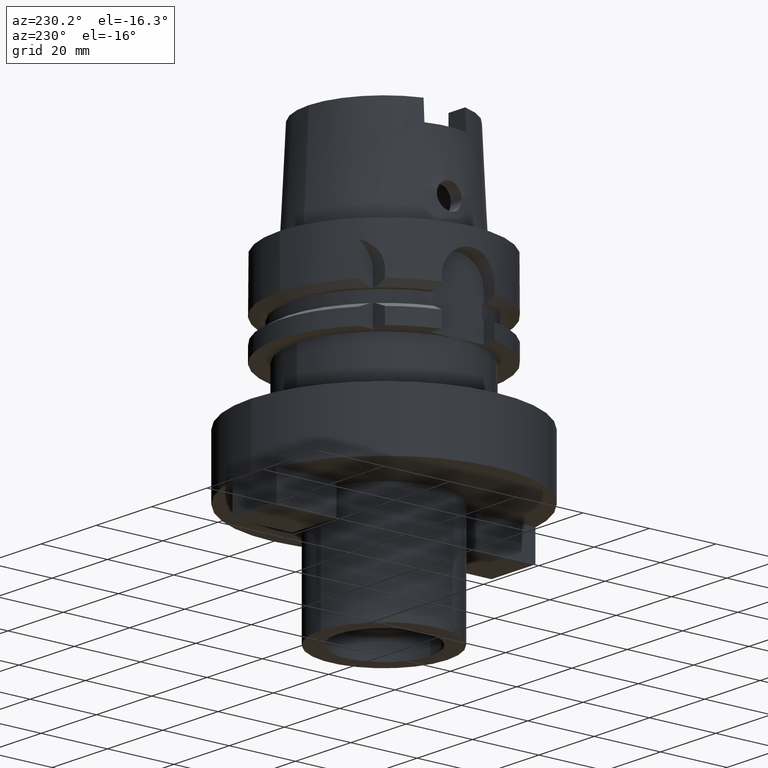
[diagram: clean part render]
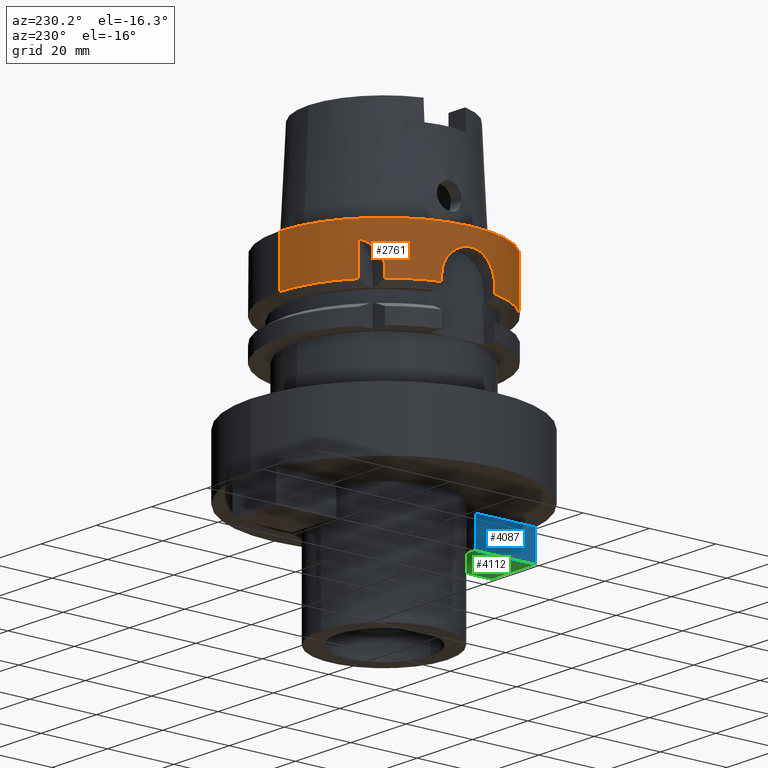
[diagram: same view with three faces highlighted in distinct colors, each labeled with its STEP entity id]
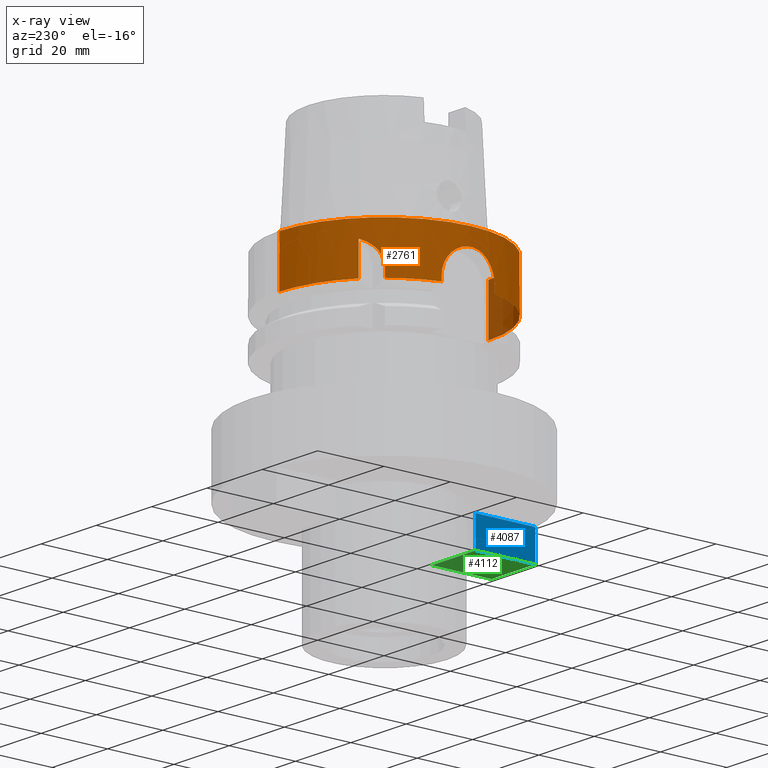
[diagram: x-ray of the same camera — body ghosted, the three highlighted faces saturated]
A machine part, auxiliary view with three faces highlighted in distinct colors.
The next image is the same camera in x-ray (body ghosted, the three faces saturated) — at least one of them is partly hidden behind the body in this view.
Their STEP definitions:

[orange] entity #2761 — the highlighted cylindrical surface (partial cylindrical patch) has radius 31.5 mm, axis along (0, 0, 1).
#342=CARTESIAN_POINT('',(0.E0,0.E0,1.705302565824E-13));
#343=DIRECTION('',(0.E0,0.E0,-1.E0));
#344=DIRECTION('',(0.E0,-1.E0,0.E0));
#345=AXIS2_PLACEMENT_3D('',#342,#343,#344);
#374=DIRECTION('',(-1.431540360012E-6,-1.176472697512E-6,-9.999999999983E-1));
#375=VECTOR('',#374,9.622451541726E0);
#376=CARTESIAN_POINT('',(-2.E1,2.433618704728E1,-5.000000000001E0));
#377=LINE('',#376,#375);
#381=DIRECTION('',(0.E0,-2.672583210396E-14,-1.E0));
#382=VECTOR('',#381,1.462250092524E1);
#383=CARTESIAN_POINT('',(0.E0,-3.15E1,1.136868377216E-13));
#384=LINE('',#383,#382);
#388=DIRECTION('',(-7.677430916827E-8,2.923914905925E-7,1.E0));
#389=VECTOR('',#388,1.622496618651E0);
#390=CARTESIAN_POINT('',(-3.046719534860E1,-8.000000474405E0,
-1.462249661865E1));
#391=LINE('',#390,#389);
#395=DIRECTION('',(-1.612885960112E-8,-6.142086186667E-8,-1.E0));
#396=VECTOR('',#395,1.622501829895E0);
#397=CARTESIAN_POINT('',(-3.046719547316E1,8.E0,-1.3E1));
#398=LINE('',#397,#396);
#402=DIRECTION('',(9.894060569839E-7,1.203919407604E-6,9.999999999988E-1));
#403=VECTOR('',#402,2.510797856236E0);
#404=CARTESIAN_POINT('',(-2.433618953148E1,1.999999697720E1,-1.462251175989E1));
#405=LINE('',#404,#403);
#409=CARTESIAN_POINT('',(-2.433618704728E1,2.E1,-1.211171390366E1));
#410=CARTESIAN_POINT('',(-2.433618704728E1,2.E1,-1.187968874011E1));
#411=CARTESIAN_POINT('',(-2.431969604555E1,2.002009231787E1,-1.141726705020E1));
#412=CARTESIAN_POINT('',(-2.424498436766E1,2.011065669890E1,-1.072602599616E1));
#413=CARTESIAN_POINT('',(-2.411963920346E1,2.026107771917E1,-1.004465961658E1));
#414=CARTESIAN_POINT('',(-2.394086931729E1,2.047236625625E1,-9.373047295153E0));
#415=CARTESIAN_POINT('',(-2.370737591500E1,2.074278700113E1,-8.720381936927E0));
#416=CARTESIAN_POINT('',(-2.341372931509E1,2.107427987047E1,-8.085982045772E0));
#417=CARTESIAN_POINT('',(-2.305679183110E1,2.146495732049E1,-7.478112393127E0));
#418=CARTESIAN_POINT('',(-2.262785438295E1,2.191755940754E1,-6.897616522368E0));
#419=CARTESIAN_POINT('',(-2.212223167450E1,2.242887389443E1,-6.353938285193E0));
#420=CARTESIAN_POINT('',(-2.152719355475E1,2.300191815633E1,-5.849306152118E0));
#421=CARTESIAN_POINT('',(-2.083176868548E1,2.363517476296E1,-5.391822024117E0));
#422=CARTESIAN_POINT('',(-2.029101495522E1,2.409702472111E1,-5.123211653379E0));
#423=CARTESIAN_POINT('',(-2.E1,2.433618704728E1,-5.000000000001E0));
#440=CARTESIAN_POINT('',(-2.000001377493E1,2.433617572673E1,-1.462245154171E1));
#521=CARTESIAN_POINT('',(-2.433618953148E1,1.999999697720E1,-1.462251175989E1));
#538=CARTESIAN_POINT('',(0.E0,0.E0,-1.462250092524E1));
#539=DIRECTION('',(0.E0,0.E0,1.E0));
#540=DIRECTION('',(-7.725773665802E-1,6.349206349206E-1,0.E0));
#541=AXIS2_PLACEMENT_3D('',#538,#539,#540);
#546=CARTESIAN_POINT('',(-3.046719549933E1,7.999999900345E0,-1.462250182989E1));
#570=CARTESIAN_POINT('',(-3.046719547316E1,8.E0,-1.3E1));
#571=CARTESIAN_POINT('',(-3.046719547316E1,8.E0,-1.241370851108E1));
#572=CARTESIAN_POINT('',(-3.050162940366E1,7.870620121668E0,-1.123382104302E1));
#573=CARTESIAN_POINT('',(-3.064985400109E1,7.283075053728E0,-9.528822210538E0));
#574=CARTESIAN_POINT('',(-3.086694380247E1,6.318894166611E0,-7.981579817882E0));
#575=CARTESIAN_POINT('',(-3.110828432532E1,5.022709001021E0,-6.684494716673E0));
#576=CARTESIAN_POINT('',(-3.132205707065E1,3.476310315137E0,-5.719496384829E0));
#577=CARTESIAN_POINT('',(-3.146633178759E1,1.773493857956E0,-5.131051273743E0));
#578=CARTESIAN_POINT('',(-3.151686953537E1,-1.296522364453E-3,
-4.934332876174E0));
#579=CARTESIAN_POINT('',(-3.146618994597E1,-1.775955334531E0,
-5.131617830784E0));
#580=CARTESIAN_POINT('',(-3.132180811286E1,-3.478511961656E0,
-5.720537342895E0));
#581=CARTESIAN_POINT('',(-3.110795608942E1,-5.024743916104E0,
-6.686125953695E0));
#582=CARTESIAN_POINT('',(-3.086662893123E1,-6.320374868140E0,
-7.983423344063E0));
#583=CARTESIAN_POINT('',(-3.064957930422E1,-7.284299956909E0,
-9.531377494973E0));
#584=CARTESIAN_POINT('',(-3.050150284495E1,-7.870976015958E0,
-1.123588105062E1));
#585=CARTESIAN_POINT('',(-3.046719547316E1,-8.E0,-1.241452559041E1));
#586=CARTESIAN_POINT('',(-3.046719547316E1,-8.E0,-1.3E1));
#1023=CARTESIAN_POINT('',(0.E0,0.E0,-1.462250092524E1));
#1024=DIRECTION('',(0.E0,0.E0,1.E0));
#1025=DIRECTION('',(-9.672125547036E-1,-2.539682539683E-1,0.E0));
#1026=AXIS2_PLACEMENT_3D('',#1023,#1024,#1025);
#1056=DIRECTION('',(0.E0,2.672583210396E-14,-1.E0));
#1057=VECTOR('',#1056,1.462250092524E1);
#1058=CARTESIAN_POINT('',(0.E0,3.15E1,1.136868377216E-13));
#1059=LINE('',#1058,#1057);
#1124=CARTESIAN_POINT('',(0.E0,0.E0,-1.462250092524E1));
#1125=DIRECTION('',(0.E0,0.E0,1.E0));
#1126=DIRECTION('',(0.E0,1.E0,0.E0));
#1127=AXIS2_PLACEMENT_3D('',#1124,#1125,#1126);
#2368=VERTEX_POINT('',#440);
#2369=CARTESIAN_POINT('',(-2.E1,2.433618704728E1,-5.000000000001E0));
#2370=VERTEX_POINT('',#2369);
#2397=CARTESIAN_POINT('',(-3.046719547316E1,-8.E0,-1.3E1));
#2398=VERTEX_POINT('',#2397);
#2399=CARTESIAN_POINT('',(-3.046719534860E1,-8.000000474405E0,
-1.462249661865E1));
#2400=VERTEX_POINT('',#2399);
#2420=VERTEX_POINT('',#546);
#2421=CARTESIAN_POINT('',(-3.046719547316E1,8.E0,-1.3E1));
#2422=VERTEX_POINT('',#2421);
#2474=CARTESIAN_POINT('',(0.E0,-3.15E1,-1.462250092524E1));
#2475=VERTEX_POINT('',#2474);
#2477=CARTESIAN_POINT('',(0.E0,3.15E1,-1.462250092524E1));
#2478=VERTEX_POINT('',#2477);
#2479=VERTEX_POINT('',#521);
#2480=CARTESIAN_POINT('',(0.E0,3.15E1,1.136868377216E-13));
#2481=VERTEX_POINT('',#2480);
#2482=CARTESIAN_POINT('',(0.E0,-3.15E1,1.705302565824E-13));
#2483=VERTEX_POINT('',#2482);
#2484=CARTESIAN_POINT('',(-2.433618704728E1,2.E1,-1.211171390366E1));
#2485=VERTEX_POINT('',#2484);
#2731=CARTESIAN_POINT('',(0.E0,0.E0,-1.003E2));
#2732=DIRECTION('',(0.E0,0.E0,1.E0));
#2733=DIRECTION('',(0.E0,1.E0,0.E0));
#2734=AXIS2_PLACEMENT_3D('',#2731,#2732,#2733);
#2735=CYLINDRICAL_SURFACE('',#2734,3.15E1);
#2737=ORIENTED_EDGE('',*,*,#2736,.T.);
#2739=ORIENTED_EDGE('',*,*,#2738,.F.);
#2741=ORIENTED_EDGE('',*,*,#2740,.F.);
#2742=ORIENTED_EDGE('',*,*,#2720,.F.);
#2744=ORIENTED_EDGE('',*,*,#2743,.T.);
#2746=ORIENTED_EDGE('',*,*,#2745,.F.);
#2748=ORIENTED_EDGE('',*,*,#2747,.T.);
#2750=ORIENTED_EDGE('',*,*,#2749,.F.);
#2752=ORIENTED_EDGE('',*,*,#2751,.T.);
#2754=ORIENTED_EDGE('',*,*,#2753,.F.);
#2756=ORIENTED_EDGE('',*,*,#2755,.T.);
#2758=ORIENTED_EDGE('',*,*,#2757,.T.);
#2759=EDGE_LOOP('',(#2737,#2739,#2741,#2742,#2744,#2746,#2748,#2750,#2752,#2754,
#2756,#2758));
#2760=FACE_OUTER_BOUND('',#2759,.F.);
#346=CIRCLE('',#345,3.15E1);
#424=B_SPLINE_CURVE_WITH_KNOTS('',3,(#409,#410,#411,#412,#413,#414,#415,#416,
#417,#418,#419,#420,#421,#422,#423),.UNSPECIFIED.,.F.,.F.,(4,1,1,1,1,1,1,1,1,1,
1,1,4),(0.E0,8.333333333333E-2,1.666666666667E-1,2.5E-1,3.333333333333E-1,
4.166666666667E-1,5.E-1,5.833333333333E-1,6.666666666667E-1,7.5E-1,
8.333333333333E-1,9.166666666667E-1,1.E0),.UNSPECIFIED.);
#542=CIRCLE('',#541,3.15E1);
#587=B_SPLINE_CURVE_WITH_KNOTS('',3,(#570,#571,#572,#573,#574,#575,#576,#577,
#578,#579,#580,#581,#582,#583,#584,#585,#586),.UNSPECIFIED.,.F.,.F.,(4,1,1,1,1,
1,1,1,1,1,1,1,1,1,4),(0.E0,7.142857142857E-2,1.428571428571E-1,
2.142857142857E-1,2.857142857143E-1,3.571428571429E-1,4.285714285714E-1,5.E-1,
5.714285714286E-1,6.428571428571E-1,7.142857142857E-1,7.857142857143E-1,
8.571428571429E-1,9.285714285714E-1,1.E0),.UNSPECIFIED.);
#1027=CIRCLE('',#1026,3.15E1);
#1128=CIRCLE('',#1127,3.15E1);
#2720=EDGE_CURVE('',#2483,#2481,#346,.T.);
#2736=EDGE_CURVE('',#2370,#2368,#377,.T.);
#2738=EDGE_CURVE('',#2478,#2368,#1128,.T.);
#2740=EDGE_CURVE('',#2481,#2478,#1059,.T.);
#2743=EDGE_CURVE('',#2483,#2475,#384,.T.);
#2745=EDGE_CURVE('',#2400,#2475,#1027,.T.);
#2747=EDGE_CURVE('',#2400,#2398,#391,.T.);
#2749=EDGE_CURVE('',#2422,#2398,#587,.T.);
#2751=EDGE_CURVE('',#2422,#2420,#398,.T.);
#2753=EDGE_CURVE('',#2479,#2420,#542,.T.);
#2755=EDGE_CURVE('',#2479,#2485,#405,.T.);
#2757=EDGE_CURVE('',#2485,#2370,#424,.T.);
#2761=ADVANCED_FACE('',(#2760),#2735,.T.);

[blue] entity #4087 — the highlighted planar face has unit normal (-1, 0, 0).
#2113=DIRECTION('',(0.E0,-1.E0,0.E0));
#2114=VECTOR('',#2113,1.8E1);
#2115=CARTESIAN_POINT('',(-7.95E0,-2.1E1,-6.E1));
#2116=LINE('',#2115,#2114);
#2120=DIRECTION('',(0.E0,0.E0,-1.E0));
#2121=VECTOR('',#2120,9.E0);
#2122=CARTESIAN_POINT('',(-7.95E0,-3.9E1,-6.E1));
#2123=LINE('',#2122,#2121);
#2127=DIRECTION('',(0.E0,1.E0,0.E0));
#2128=VECTOR('',#2127,1.8E1);
#2129=CARTESIAN_POINT('',(-7.95E0,-3.9E1,-6.9E1));
#2130=LINE('',#2129,#2128);
#2134=DIRECTION('',(0.E0,0.E0,1.E0));
#2135=VECTOR('',#2134,9.E0);
#2136=CARTESIAN_POINT('',(-7.95E0,-2.1E1,-6.9E1));
#2137=LINE('',#2136,#2135);
#2317=CARTESIAN_POINT('',(-7.95E0,-3.9E1,-6.E1));
#2318=VERTEX_POINT('',#2317);
#2319=CARTESIAN_POINT('',(-7.95E0,-2.1E1,-6.E1));
#2320=VERTEX_POINT('',#2319);
#2499=CARTESIAN_POINT('',(-7.95E0,-2.1E1,-6.9E1));
#2500=VERTEX_POINT('',#2499);
#2501=CARTESIAN_POINT('',(-7.95E0,-3.9E1,-6.9E1));
#2502=VERTEX_POINT('',#2501);
#4074=CARTESIAN_POINT('',(-7.95E0,0.E0,0.E0));
#4075=DIRECTION('',(-1.E0,0.E0,0.E0));
#4076=DIRECTION('',(0.E0,0.E0,1.E0));
#4077=AXIS2_PLACEMENT_3D('',#4074,#4075,#4076);
#4078=PLANE('',#4077);
#4079=ORIENTED_EDGE('',*,*,#3462,.T.);
#4081=ORIENTED_EDGE('',*,*,#4080,.T.);
#4083=ORIENTED_EDGE('',*,*,#4082,.T.);
#4084=ORIENTED_EDGE('',*,*,#4066,.T.);
#4085=EDGE_LOOP('',(#4079,#4081,#4083,#4084));
#4086=FACE_OUTER_BOUND('',#4085,.F.);
#3462=EDGE_CURVE('',#2320,#2318,#2116,.T.);
#4066=EDGE_CURVE('',#2500,#2320,#2137,.T.);
#4080=EDGE_CURVE('',#2318,#2502,#2123,.T.);
#4082=EDGE_CURVE('',#2502,#2500,#2130,.T.);
#4087=ADVANCED_FACE('',(#4086),#4078,.T.);

[green] entity #4112 — the highlighted planar face has unit normal (0, 0, -1).
#2099=DIRECTION('',(1.E0,0.E0,0.E0));
#2100=VECTOR('',#2099,1.59E1);
#2101=CARTESIAN_POINT('',(-7.95E0,-2.1E1,-6.9E1));
#2102=LINE('',#2101,#2100);
#2127=DIRECTION('',(0.E0,1.E0,0.E0));
#2128=VECTOR('',#2127,1.8E1);
#2129=CARTESIAN_POINT('',(-7.95E0,-3.9E1,-6.9E1));
#2130=LINE('',#2129,#2128);
#2155=DIRECTION('',(0.E0,1.E0,0.E0));
#2156=VECTOR('',#2155,1.8E1);
#2157=CARTESIAN_POINT('',(7.95E0,-3.9E1,-6.9E1));
#2158=LINE('',#2157,#2156);
#2162=DIRECTION('',(1.E0,0.E0,0.E0));
#2163=VECTOR('',#2162,1.59E1);
#2164=CARTESIAN_POINT('',(-7.95E0,-3.9E1,-6.9E1));
#2165=LINE('',#2164,#2163);
#2495=CARTESIAN_POINT('',(7.95E0,-2.1E1,-6.9E1));
#2496=VERTEX_POINT('',#2495);
#2497=CARTESIAN_POINT('',(7.95E0,-3.9E1,-6.9E1));
#2498=VERTEX_POINT('',#2497);
#2499=CARTESIAN_POINT('',(-7.95E0,-2.1E1,-6.9E1));
#2500=VERTEX_POINT('',#2499);
#2501=CARTESIAN_POINT('',(-7.95E0,-3.9E1,-6.9E1));
#2502=VERTEX_POINT('',#2501);
#4101=CARTESIAN_POINT('',(7.95E0,-2.1E1,-6.9E1));
#4102=DIRECTION('',(0.E0,0.E0,-1.E0));
#4103=DIRECTION('',(0.E0,-1.E0,0.E0));
#4104=AXIS2_PLACEMENT_3D('',#4101,#4102,#4103);
#4105=PLANE('',#4104);
#4106=ORIENTED_EDGE('',*,*,#4053,.T.);
#4107=ORIENTED_EDGE('',*,*,#4068,.F.);
#4108=ORIENTED_EDGE('',*,*,#4082,.F.);
#4109=ORIENTED_EDGE('',*,*,#4095,.T.);
#4110=EDGE_LOOP('',(#4106,#4107,#4108,#4109));
#4111=FACE_OUTER_BOUND('',#4110,.F.);
#4053=EDGE_CURVE('',#2498,#2496,#2158,.T.);
#4068=EDGE_CURVE('',#2500,#2496,#2102,.T.);
#4082=EDGE_CURVE('',#2502,#2500,#2130,.T.);
#4095=EDGE_CURVE('',#2502,#2498,#2165,.T.);
#4112=ADVANCED_FACE('',(#4111),#4105,.T.);